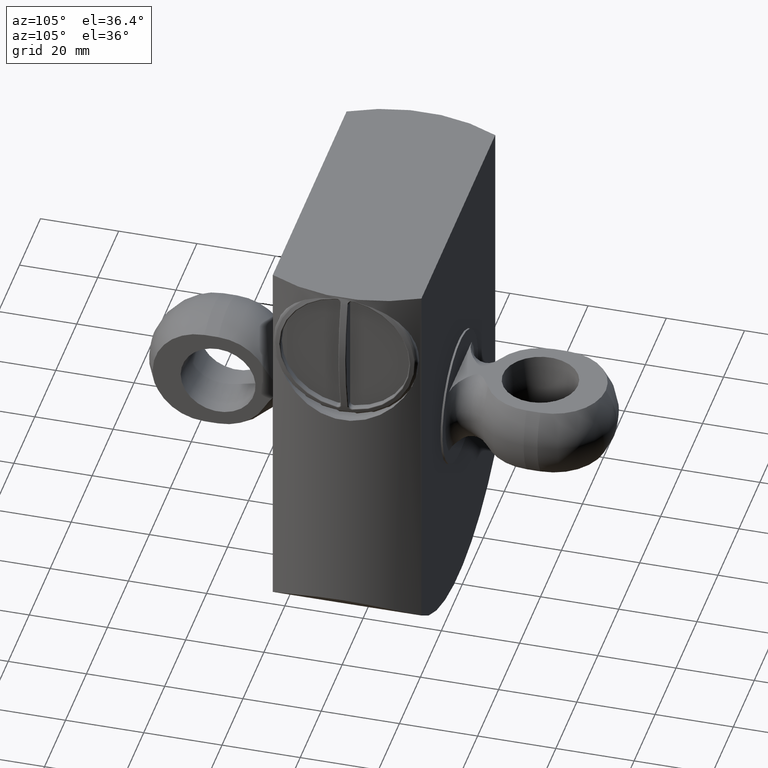
[diagram: clean part render]
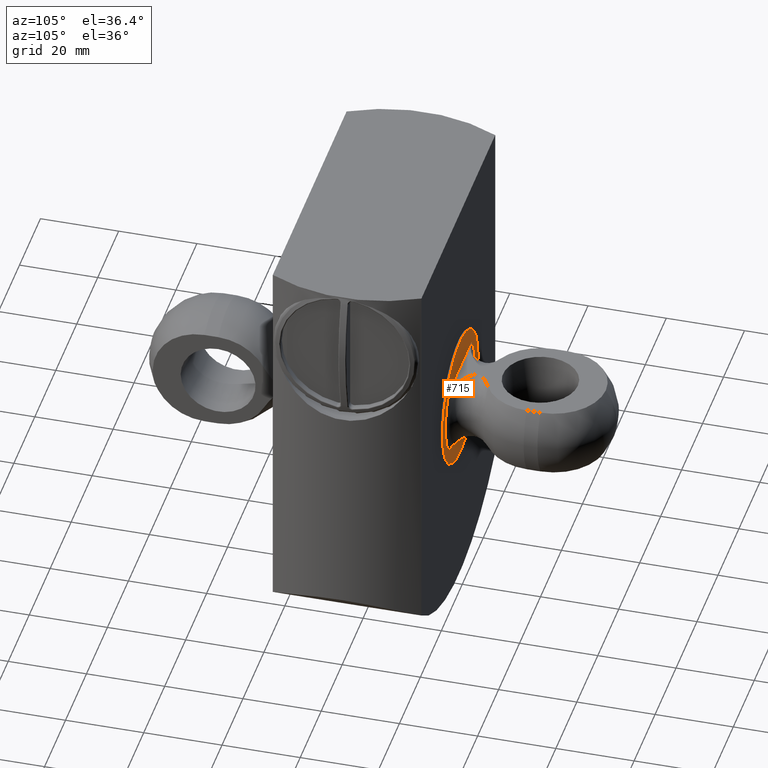
[diagram: same view with one face highlighted and labeled with its STEP entity id]
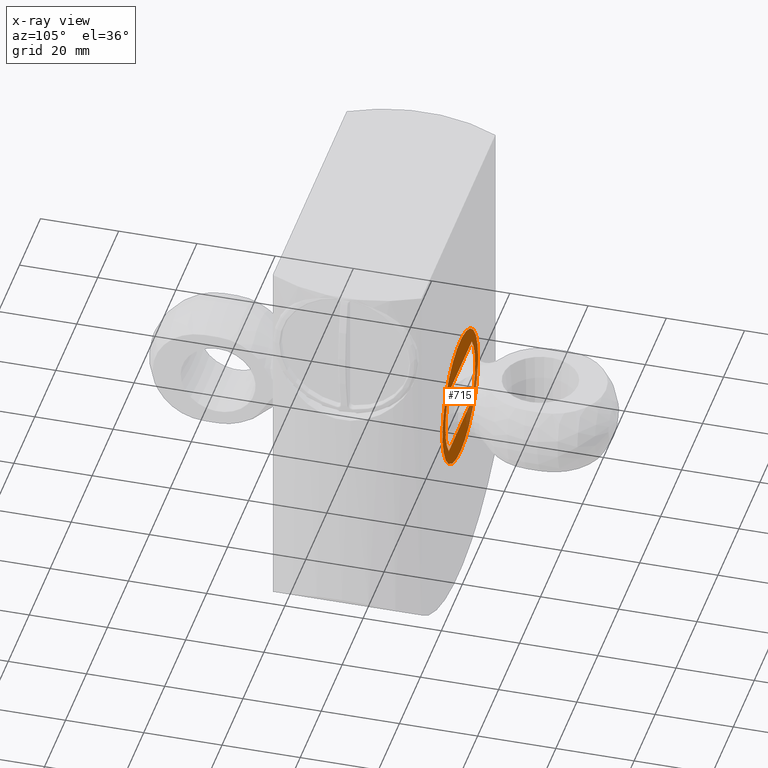
[diagram: x-ray of the same camera — body ghosted, the highlighted face saturated]
A machine part, auxiliary view. The second image highlights one B-rep face of the part: STEP entity #715.
The next image is the same camera in x-ray: the body ghosted, the highlighted face saturated — about 13% of this face is hidden behind the body in this view.
In plain terms, the highlighted planar face has unit normal (0, 1, 0).
Its self-contained STEP definition (entity closure, byte-faithful):
#60=FACE_BOUND('',#156,.T.);
#72=PLANE('',#842);
#107=FACE_OUTER_BOUND('',#155,.T.);
#155=EDGE_LOOP('',(#625,#626));
#156=EDGE_LOOP('',(#627,#628,#629,#630));
#204=LINE('',#1586,#229);
#207=LINE('',#1651,#232);
#229=VECTOR('',#1038,10.);
#232=VECTOR('',#1051,10.);
#281=CIRCLE('',#843,17.);
#282=CIRCLE('',#844,17.);
#283=CIRCLE('',#845,14.1686273153048);
#284=CIRCLE('',#846,14.1686273153048);
#342=VERTEX_POINT('',#1526);
#348=VERTEX_POINT('',#1561);
#350=VERTEX_POINT('',#1589);
#357=VERTEX_POINT('',#1626);
#358=VERTEX_POINT('',#1653);
#359=VERTEX_POINT('',#1654);
#441=EDGE_CURVE('',#348,#342,#204,.T.);
#450=EDGE_CURVE('',#357,#350,#207,.T.);
#451=EDGE_CURVE('',#358,#359,#281,.T.);
#452=EDGE_CURVE('',#359,#358,#282,.T.);
#453=EDGE_CURVE('',#350,#348,#283,.T.);
#454=EDGE_CURVE('',#342,#357,#284,.T.);
#625=ORIENTED_EDGE('',*,*,#451,.T.);
#626=ORIENTED_EDGE('',*,*,#452,.T.);
#627=ORIENTED_EDGE('',*,*,#453,.F.);
#628=ORIENTED_EDGE('',*,*,#450,.F.);
#629=ORIENTED_EDGE('',*,*,#454,.F.);
#630=ORIENTED_EDGE('',*,*,#441,.F.);
#715=ADVANCED_FACE('',(#107,#60),#72,.T.);
#842=AXIS2_PLACEMENT_3D('',#1652,#1052,#1053);
#843=AXIS2_PLACEMENT_3D('',#1655,#1054,#1055);
#844=AXIS2_PLACEMENT_3D('',#1656,#1056,#1057);
#845=AXIS2_PLACEMENT_3D('',#1657,#1058,#1059);
#846=AXIS2_PLACEMENT_3D('',#1658,#1060,#1061);
#1038=DIRECTION('',(-1.,0.,0.));
#1051=DIRECTION('',(1.,0.,0.));
#1052=DIRECTION('center_axis',(0.,1.,0.));
#1053=DIRECTION('ref_axis',(1.,0.,0.));
#1054=DIRECTION('center_axis',(0.,1.,0.));
#1055=DIRECTION('ref_axis',(1.,0.,0.));
#1056=DIRECTION('center_axis',(0.,1.,0.));
#1057=DIRECTION('ref_axis',(1.,0.,0.));
#1058=DIRECTION('center_axis',(0.,1.,0.));
#1059=DIRECTION('ref_axis',(-1.,0.,0.));
#1060=DIRECTION('center_axis',(0.,1.,0.));
#1061=DIRECTION('ref_axis',(-1.,0.,0.));
#1526=CARTESIAN_POINT('',(-10.9430343141197,19.5,-9.));
#1561=CARTESIAN_POINT('',(10.9430343141197,19.5,-9.));
#1586=CARTESIAN_POINT('',(0.,19.5,-9.));
#1589=CARTESIAN_POINT('',(10.9430343141197,19.5,9.));
#1626=CARTESIAN_POINT('',(-10.9430343141197,19.5,9.));
#1651=CARTESIAN_POINT('',(0.,19.5,9.));
#1652=CARTESIAN_POINT('Origin',(0.,19.5,0.));
#1653=CARTESIAN_POINT('',(-14.422205101856,19.5,-9.));
#1654=CARTESIAN_POINT('',(-17.,19.5,2.0818995585505E-15));
#1655=CARTESIAN_POINT('Origin',(0.,19.5,0.));
#1656=CARTESIAN_POINT('Origin',(0.,19.5,0.));
#1657=CARTESIAN_POINT('Origin',(0.,19.5,0.));
#1658=CARTESIAN_POINT('Origin',(0.,19.5,0.));